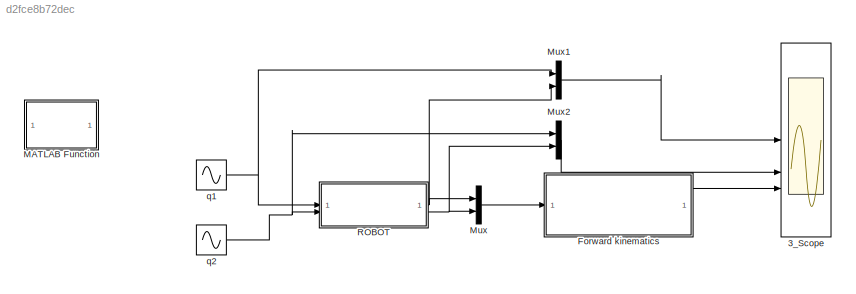
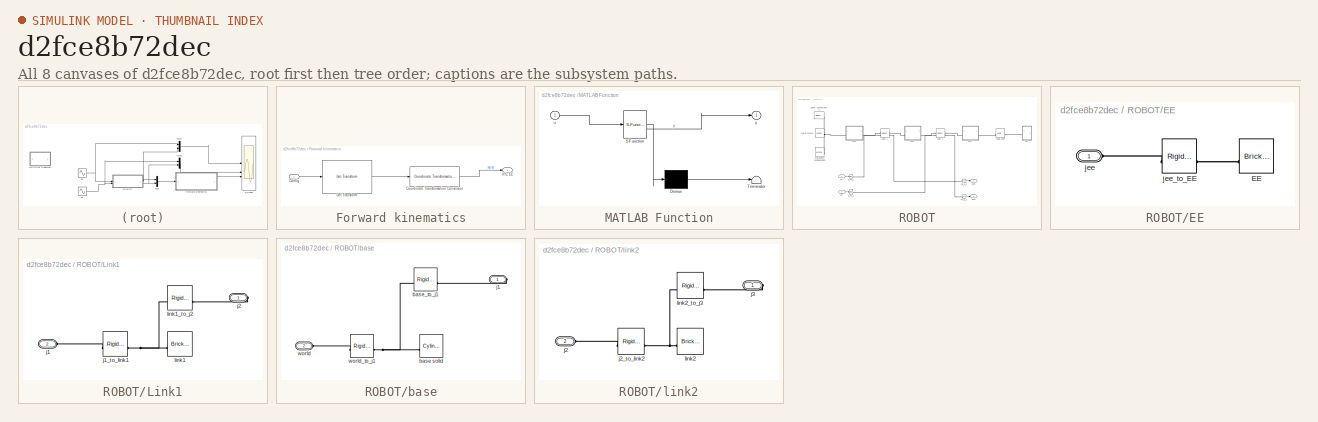
[diagram: thumbnail index - all 8 canvases of the model, root first then tree order]
MODEL slx_d2fce8b72dec
KIND model
CONFIG AbsTol = auto
CONFIG EnableMultiTasking = off
CONFIG FixedStep = auto
CONFIG MaxStep = auto
CONFIG MinStep = auto
CONFIG RelTol = 1e-3
CONFIG SampleTimeConstraint = Unconstrained
CONFIG SolverName = VariableStepAuto
CONFIG StartTime = 0.0
CONFIG StopTime = 10.0
BLOCK [Scope] 3_Scope
  Floating = off
  NumInputPorts = 3
  ScopeSpecificationString = Simulink.scopes.TimeScopeBlockCfg('CurrentConfiguration', extmgr.ConfigurationSet(extmgr.Configuration('Core','General UI',true),extmgr.Configuration('Core','Source UI',true),extmgr.Configuration('Sources','WiredSimulink',true),extmgr.Configuration('Visuals','Time Domain',true,'SerializedDisplays',{struct('MinYLimReal','-3.125','MaxYLimReal','3.125','YLabelReal','','MinYLimMag','0.00000','MaxYLimM...<+2701ch>
BLOCK [SubSystem] Forward kinematics
BLOCK [Inport] Forward kinematics/Config
BLOCK [Reference] Forward kinematics/Coordinate Transformation Conversion  REF=robotcorelib/Coordinate Transformation Conversion
  LibrarySourceBlock = robotutilslib/Coordinate Transformation Conversion
  SourceBlock = robotcorelib/Coordinate Transformation Conversion
  SourceType = robotics.slcore.internal.block.CoordinateTransformationConversion
BLOCK [Reference] Forward kinematics/Get Transform  REF=robotmaniplib/Get Transform
  SourceBlock = robotmaniplib/Get Transform
  SourceType = Get Transform
BLOCK [Outport] Forward kinematics/XYZ EE
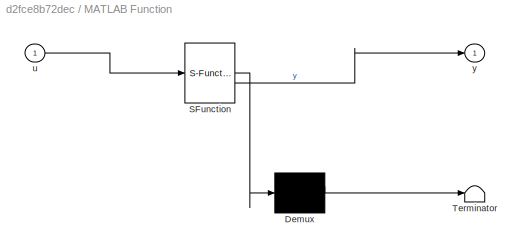
BLOCK [SubSystem] MATLAB Function
  ErrorFcn = Stateflow.Translate.translate
  LibrarySourceBlock = simulink/User-Defined\nFunctions/MATLAB Function
  PermitHierarchicalResolution = ExplicitOnly
  SFBlockType = MATLAB Function
  TreatAsAtomicUnit = on
BLOCK [Demux] MATLAB Function/ Demux 
  Outputs = 1
BLOCK [S-Function] MATLAB Function/ SFunction 
  EnableBusSupport = off
  FunctionName = sf_sfun
  PortCounts = [1 2]
  SFcnIsStateOwnerBlock = off
  SFunctionDeploymentMode = off
  Tag = Stateflow S-Function 2
BLOCK [Terminator] MATLAB Function/ Terminator 
BLOCK [Inport] MATLAB Function/u
BLOCK [Outport] MATLAB Function/y
BLOCK [Mux] Mux
  DisplayOption = bar
  Inputs = 2
BLOCK [Mux] Mux1
  DisplayOption = bar
  Inputs = 2
BLOCK [Mux] Mux2
  DisplayOption = bar
  Inputs = 2
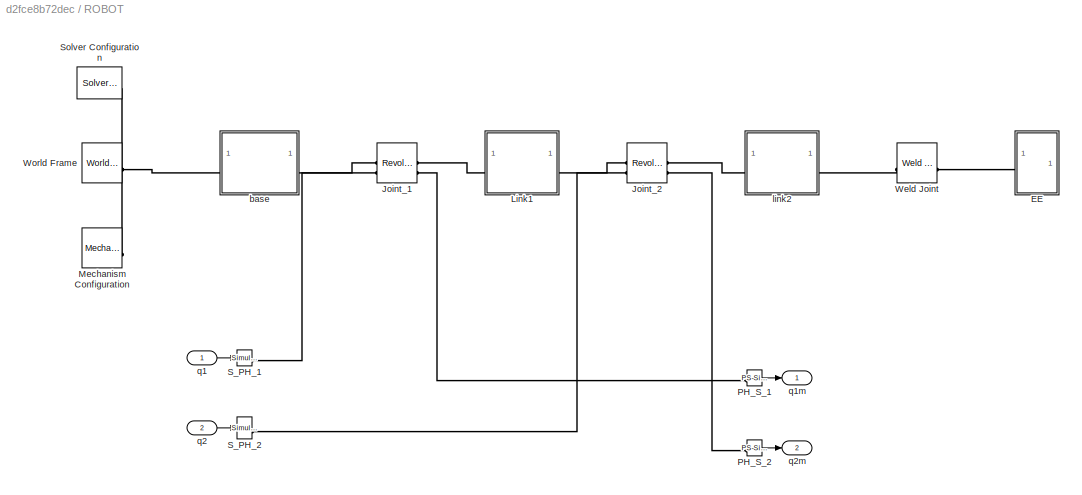
BLOCK [SubSystem] ROBOT
BLOCK [SubSystem] ROBOT/EE
BLOCK [Reference] ROBOT/EE/EE  REF=sm_lib/Body Elements/Brick Solid
  NameLocation = top
  SourceBlock = sm_lib/Body Elements/Brick Solid
  SourceType = Brick Solid
BLOCK [PMIOPort] ROBOT/EE/jee
  Side = Left
BLOCK [Reference] ROBOT/EE/jee_to_EE  REF=sm_lib/Frames and
Transforms/Rigid
Transform
  SourceBlock = sm_lib/Frames and\nTransforms/Rigid\nTransform
  SourceType = Rigid\nTransform
BLOCK [Reference] ROBOT/Joint_1  REF=sm_lib/Joints/Revolute Joint
  SourceBlock = sm_lib/Joints/Revolute Joint
  SourceType = Revolute Joint
BLOCK [Reference] ROBOT/Joint_2  REF=sm_lib/Joints/Revolute Joint
  SourceBlock = sm_lib/Joints/Revolute Joint
  SourceType = Revolute Joint
BLOCK [SubSystem] ROBOT/Link1
BLOCK [PMIOPort] ROBOT/Link1/j1
  Port = 2
  Side = Left
BLOCK [Reference] ROBOT/Link1/j1_to_link1  REF=sm_lib/Frames and
Transforms/Rigid
Transform
  SourceBlock = sm_lib/Frames and\nTransforms/Rigid\nTransform
  SourceType = Rigid\nTransform
BLOCK [PMIOPort] ROBOT/Link1/j2
  Side = Right
BLOCK [Reference] ROBOT/Link1/link1  REF=sm_lib/Body Elements/Brick Solid
  SourceBlock = sm_lib/Body Elements/Brick Solid
  SourceType = Brick Solid
BLOCK [Reference] ROBOT/Link1/link1_to_j2  REF=sm_lib/Frames and
Transforms/Rigid
Transform
  SourceBlock = sm_lib/Frames and\nTransforms/Rigid\nTransform
  SourceType = Rigid\nTransform
BLOCK [Reference] ROBOT/Mechanism Configuration  REF=sm_lib/Utilities/Mechanism
Configuration
  SourceBlock = sm_lib/Utilities/Mechanism\nConfiguration
  SourceType = Mechanism\nConfiguration
BLOCK [Reference] ROBOT/PH_S_1  REF=nesl_utility/PS-Simulink
Converter
  SourceBlock = nesl_utility/PS-Simulink\nConverter
  SourceType = PS-Simulink\nConverter
BLOCK [Reference] ROBOT/PH_S_2  REF=nesl_utility/PS-Simulink
Converter
  SourceBlock = nesl_utility/PS-Simulink\nConverter
  SourceType = PS-Simulink\nConverter
BLOCK [Reference] ROBOT/S_PH_1  REF=nesl_utility/Simulink-PS
Converter
  SourceBlock = nesl_utility/Simulink-PS\nConverter
  SourceType = Simulink-PS\nConverter
BLOCK [Reference] ROBOT/S_PH_2  REF=nesl_utility/Simulink-PS
Converter
  SourceBlock = nesl_utility/Simulink-PS\nConverter
  SourceType = Simulink-PS\nConverter
BLOCK [Reference] ROBOT/Solver Configuration  REF=nesl_utility/Solver
Configuration
  SourceBlock = nesl_utility/Solver\nConfiguration
  SourceType = Solver\nConfiguration
BLOCK [Reference] ROBOT/Weld Joint  REF=sm_lib/Joints/Weld Joint
  SourceBlock = sm_lib/Joints/Weld Joint
  SourceType = Weld Joint
BLOCK [Reference] ROBOT/World Frame  REF=sm_lib/Frames and
Transforms/World Frame
  SourceBlock = sm_lib/Frames and\nTransforms/World Frame
  SourceType = World Frame
BLOCK [SubSystem] ROBOT/base
BLOCK [Reference] ROBOT/base/base solid  REF=sm_lib/Body Elements/Cylindrical Solid
  NameLocation = top
  SourceBlock = sm_lib/Body Elements/Cylindrical Solid
  SourceType = Cylindrical Solid
BLOCK [Reference] ROBOT/base/base_to_j1  REF=sm_lib/Frames and
Transforms/Rigid
Transform
  SourceBlock = sm_lib/Frames and\nTransforms/Rigid\nTransform
  SourceType = Rigid\nTransform
BLOCK [PMIOPort] ROBOT/base/j1
  Side = Right
BLOCK [PMIOPort] ROBOT/base/world
  Port = 2
  Side = Left
BLOCK [Reference] ROBOT/base/world_to_j1  REF=sm_lib/Frames and
Transforms/Rigid
Transform
  SourceBlock = sm_lib/Frames and\nTransforms/Rigid\nTransform
  SourceType = Rigid\nTransform
BLOCK [SubSystem] ROBOT/link2
BLOCK [PMIOPort] ROBOT/link2/j2
  Port = 2
  Side = Left
BLOCK [Reference] ROBOT/link2/j2_to_link2  REF=sm_lib/Frames and
Transforms/Rigid
Transform
  SourceBlock = sm_lib/Frames and\nTransforms/Rigid\nTransform
  SourceType = Rigid\nTransform
BLOCK [PMIOPort] ROBOT/link2/j3
  Side = Right
BLOCK [Reference] ROBOT/link2/link2  REF=sm_lib/Body Elements/Brick Solid
  SourceBlock = sm_lib/Body Elements/Brick Solid
  SourceType = Brick Solid
BLOCK [Reference] ROBOT/link2/link2_to_j3  REF=sm_lib/Frames and
Transforms/Rigid
Transform
  SourceBlock = sm_lib/Frames and\nTransforms/Rigid\nTransform
  SourceType = Rigid\nTransform
BLOCK [Inport] ROBOT/q1
BLOCK [Outport] ROBOT/q1m
BLOCK [Inport] ROBOT/q2
  Port = 2
BLOCK [Outport] ROBOT/q2m
  Port = 2
BLOCK [Sin] q1
  Amplitude = 1.3
  SampleTime = 0
BLOCK [Sin] q2
  Amplitude = 2.5
  Frequency = 1.2
  SampleTime = 0
LINE Forward kinematics/Config:1 -> Forward kinematics/Get Transform:1
LINE Forward kinematics/Coordinate Transformation Conversion:1 -> Forward kinematics/XYZ EE:1
LINE Forward kinematics/Get Transform:1 -> Forward kinematics/Coordinate Transformation Conversion:1
LINE Forward kinematics:1 -> 3_Scope:3
LINE Mux1:1 -> 3_Scope:1
LINE Mux2:1 -> 3_Scope:2
LINE Mux:1 -> Forward kinematics:1
LINE ROBOT/PH_S_1:1 -> ROBOT/q1m:1
LINE ROBOT/PH_S_2:1 -> ROBOT/q2m:1
LINE ROBOT/q1:1 -> ROBOT/S_PH_1:1
LINE ROBOT/q2:1 -> ROBOT/S_PH_2:1
NET ROBOT:1 -> Mux1:2, Mux:1
NET ROBOT:2 -> Mux2:2, Mux:2
NET q1:1 -> Mux1:1, ROBOT:1
NET q2:1 -> Mux2:1, ROBOT:2
PLINE ROBOT/EE/EE:RConn1 -- ROBOT/EE/jee_to_EE:RConn1
PLINE ROBOT/EE/jee:RConn1 -- ROBOT/EE/jee_to_EE:LConn1
PLINE ROBOT/EE:LConn1 -- ROBOT/Weld Joint:RConn1
PLINE ROBOT/Joint_1:LConn1 -- ROBOT/base:RConn1
PLINE ROBOT/Joint_1:LConn2 -- ROBOT/S_PH_1:RConn1
PLINE ROBOT/Joint_1:RConn1 -- ROBOT/Link1:LConn1
PLINE ROBOT/Joint_1:RConn2 -- ROBOT/PH_S_1:LConn1
PLINE ROBOT/Joint_2:LConn1 -- ROBOT/Link1:RConn1
PLINE ROBOT/Joint_2:LConn2 -- ROBOT/S_PH_2:RConn1
PLINE ROBOT/Joint_2:RConn1 -- ROBOT/link2:LConn1
PLINE ROBOT/Joint_2:RConn2 -- ROBOT/PH_S_2:LConn1
PLINE ROBOT/Link1/j1:RConn1 -- ROBOT/Link1/j1_to_link1:LConn1
PNET net1: ROBOT/Link1/j1_to_link1:RConn1 -- ROBOT/Link1/link1:RConn1 -- ROBOT/Link1/link1_to_j2:LConn1
PLINE ROBOT/Link1/j2:RConn1 -- ROBOT/Link1/link1_to_j2:RConn1
PNET net2: ROBOT/Mechanism Configuration:RConn1 -- ROBOT/Solver Configuration:RConn1 -- ROBOT/World Frame:RConn1 -- ROBOT/base:LConn1
PLINE ROBOT/Weld Joint:LConn1 -- ROBOT/link2:RConn1
PNET net3: ROBOT/base/base solid:RConn1 -- ROBOT/base/base_to_j1:LConn1 -- ROBOT/base/world_to_j1:RConn1
PLINE ROBOT/base/base_to_j1:RConn1 -- ROBOT/base/j1:RConn1
PLINE ROBOT/base/world:RConn1 -- ROBOT/base/world_to_j1:LConn1
PLINE ROBOT/link2/j2:RConn1 -- ROBOT/link2/j2_to_link2:LConn1
PNET net4: ROBOT/link2/j2_to_link2:RConn1 -- ROBOT/link2/link2:RConn1 -- ROBOT/link2/link2_to_j3:LConn1
PLINE ROBOT/link2/j3:RConn1 -- ROBOT/link2/link2_to_j3:RConn1
note: NET lines group one-source signal fan-out (src -> all destinations, sorted); 1:1 wires keep LINE; PNET lines group multi-terminal physical nets as a canonical sorted terminal list (undirected conserving connections); 2-terminal nets keep the pairwise PLINE form
CHART MATLAB Function states=1 transitions=1
  STATE_LABEL 'eML_blk_kernel()'
  STATE_LABEL 'SCRIPT:\nfunction y = fcn(u)\n\ny = u;\n'
CHART  states=0 transitions=0
